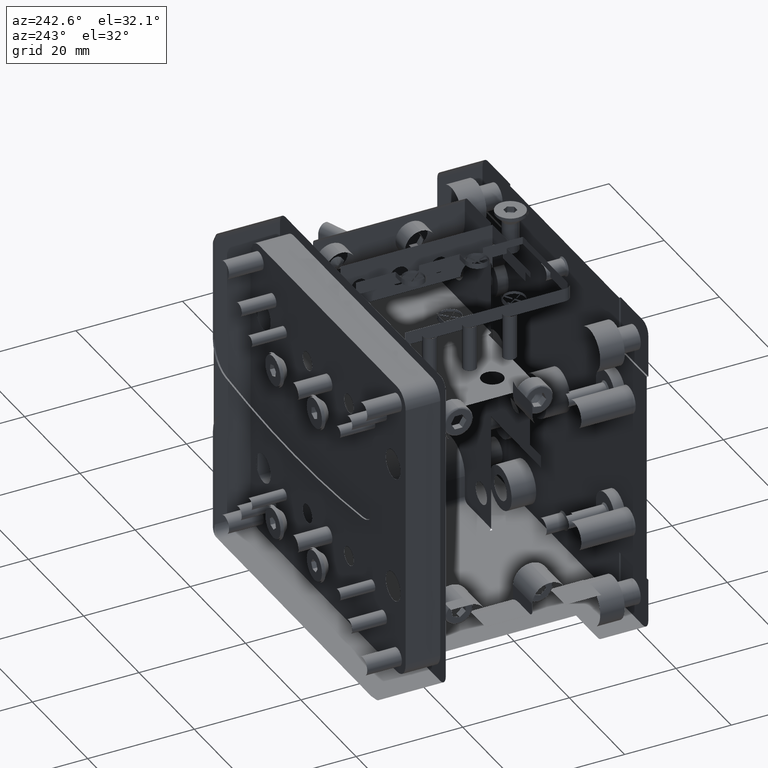
[diagram: clean part render]
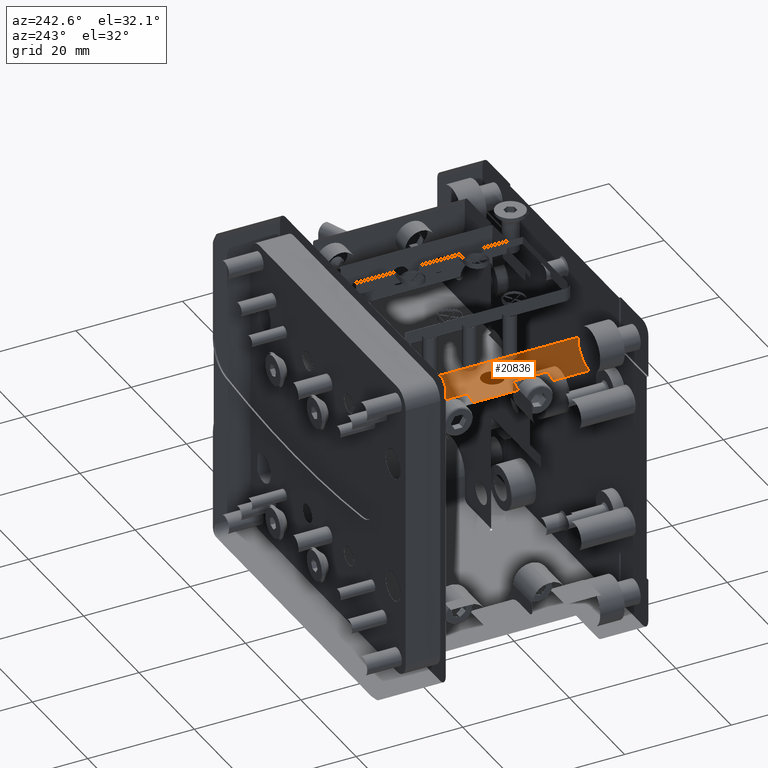
[diagram: same view with one face highlighted and labeled with its STEP entity id]
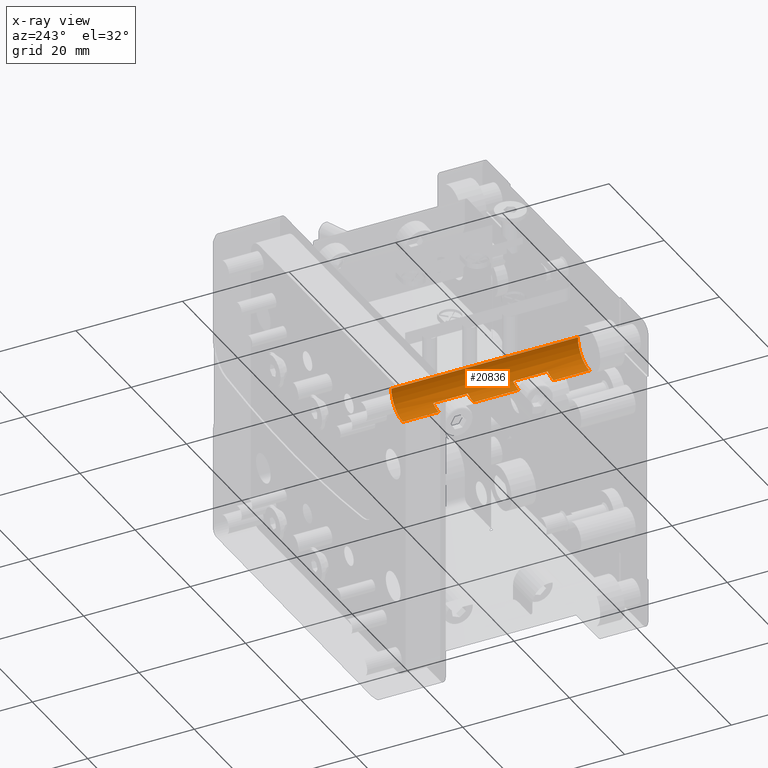
[diagram: x-ray of the same camera — body ghosted, the highlighted face saturated]
A machine part, auxiliary view. The second image highlights one B-rep face of the part: STEP entity #20836.
The next image is the same camera in x-ray: the body ghosted, the highlighted face saturated — about 0% of this face is hidden behind the body in this view.
In plain terms, the highlighted cylindrical surface (edge-blend (fillet) strip) has radius 4.2 mm, axis along (0, 1, 0).
Its self-contained STEP definition (entity closure, byte-faithful):
#621 = CIRCLE ( 'NONE', #13850, 4.200000000000001954 ) ;
#745 = CARTESIAN_POINT ( 'NONE',  ( -25.09999999999999787, 15.25000000000000000, 25.09999999999999787 ) ) ;
#1170 = CARTESIAN_POINT ( 'NONE',  ( -25.09999999999999787, 36.75000000000001421, 25.09999999999999787 ) ) ;
#1566 = EDGE_CURVE ( 'NONE', #25994, #18930, #11761, .T. ) ;
#1575 = VECTOR ( 'NONE', #7984, 1000.000000000000000 ) ;
#1709 = DIRECTION ( 'NONE',  ( 0.000000000000000000, 1.000000000000000000, 0.000000000000000000 ) ) ;
#2327 = ORIENTED_EDGE ( 'NONE', *, *, #3522, .T. ) ;
#2416 = VECTOR ( 'NONE', #28648, 1000.000000000000000 ) ;
#2910 = EDGE_CURVE ( 'NONE', #24552, #3151, #20544, .T. ) ;
#3048 = EDGE_CURVE ( 'NONE', #3490, #14588, #21312, .T. ) ;
#3151 = VERTEX_POINT ( 'NONE', #22946 ) ;
#3490 = VERTEX_POINT ( 'NONE', #6760 ) ;
#3522 = EDGE_CURVE ( 'NONE', #26199, #25994, #17389, .T. ) ;
#3776 = DIRECTION ( 'NONE',  ( 0.000000000000000000, 0.000000000000000000, 1.000000000000000000 ) ) ;
#4039 = ORIENTED_EDGE ( 'NONE', *, *, #16039, .F. ) ;
#5804 = CARTESIAN_POINT ( 'NONE',  ( -20.89999999999999503, 43.50000000000001421, 25.09999999999999787 ) ) ;
#6244 = CARTESIAN_POINT ( 'NONE',  ( -25.09999999999999787, 43.50000000000001421, 20.89999999999999503 ) ) ;
#6348 = AXIS2_PLACEMENT_3D ( 'NONE', #20880, #22667, #25347 ) ;
#6377 = ORIENTED_EDGE ( 'NONE', *, *, #9984, .T. ) ;
#6554 = CARTESIAN_POINT ( 'NONE',  ( -25.09999999999999787, 43.50000000000001421, 20.89999999999999503 ) ) ;
#6699 = CARTESIAN_POINT ( 'NONE',  ( -25.09999999999999787, 43.50000000000001421, 25.09999999999999787 ) ) ;
#6760 = CARTESIAN_POINT ( 'NONE',  ( -25.09999999999999787, 15.25000000000000000, 20.89999999999999503 ) ) ;
#6896 = AXIS2_PLACEMENT_3D ( 'NONE', #24074, #1709, #3776 ) ;
#7427 = ORIENTED_EDGE ( 'NONE', *, *, #3048, .T. ) ;
#7442 = CARTESIAN_POINT ( 'NONE',  ( -25.09999999999999787, 30.25000000000000355, 25.09999999999999787 ) ) ;
#7592 = DIRECTION ( 'NONE',  ( 0.000000000000000000, 1.000000000000000000, 0.000000000000000000 ) ) ;
#7924 = EDGE_CURVE ( 'NONE', #28062, #3151, #9946, .T. ) ;
#7984 = DIRECTION ( 'NONE',  ( 0.000000000000000000, 1.000000000000000000, 0.000000000000000000 ) ) ;
#8406 = CARTESIAN_POINT ( 'NONE',  ( -22.99999999999999289, 30.25000000000000355, 21.46269330410535403 ) ) ;
#8927 = FACE_OUTER_BOUND ( 'NONE', #16486, .T. ) ;
#9127 = VECTOR ( 'NONE', #7592, 1000.000000000000000 ) ;
#9126 = CARTESIAN_POINT ( 'NONE',  ( -25.09999999999999787, 21.75000000000000355, 25.09999999999999787 ) ) ;
#9141 = CARTESIAN_POINT ( 'NONE',  ( -25.09999999999999787, 21.75000000000000355, 20.89999999999999503 ) ) ;
#9694 = CARTESIAN_POINT ( 'NONE',  ( -22.99999999999999289, 21.75000000000000355, 21.46269330410535403 ) ) ;
#9794 = DIRECTION ( 'NONE',  ( -2.478176394252580549E-15, 0.000000000000000000, 1.000000000000000000 ) ) ;
#9946 = LINE ( 'NONE', #5804, #9127 ) ;
#9984 = EDGE_CURVE ( 'NONE', #28062, #17117, #22491, .T. ) ;
#10150 = ORIENTED_EDGE ( 'NONE', *, *, #20719, .T. ) ;
#10180 = EDGE_CURVE ( 'NONE', #23463, #24552, #13181, .T. ) ;
#10611 = DIRECTION ( 'NONE',  ( -0.000000000000000000, -1.000000000000000000, -0.000000000000000000 ) ) ;
#11286 = DIRECTION ( 'NONE',  ( 0.000000000000000000, 0.000000000000000000, 1.000000000000000000 ) ) ;
#11761 = CIRCLE ( 'NONE', #13173, 4.200000000000001954 ) ;
#11831 = CIRCLE ( 'NONE', #12772, 4.200000000000001954 ) ;
#12160 = VERTEX_POINT ( 'NONE', #9694 ) ;
#12772 = AXIS2_PLACEMENT_3D ( 'NONE', #1170, #19242, #19380 ) ;
#13173 = AXIS2_PLACEMENT_3D ( 'NONE', #7442, #14671, #9794 ) ;
#13181 = LINE ( 'NONE', #6244, #22860 ) ;
#13454 = CARTESIAN_POINT ( 'NONE',  ( -25.09999999999999787, 43.50000000000001421, 20.89999999999999503 ) ) ;
#13818 = AXIS2_PLACEMENT_3D ( 'NONE', #6699, #15745, #11286 ) ;
#13850 = AXIS2_PLACEMENT_3D ( 'NONE', #9126, #15930, #18308 ) ;
#13985 = ORIENTED_EDGE ( 'NONE', *, *, #27543, .T. ) ;
#14073 = CARTESIAN_POINT ( 'NONE',  ( -25.09999999999999787, 8.500000000000000000, 20.89999999999999503 ) ) ;
#14588 = VERTEX_POINT ( 'NONE', #19909 ) ;
#14671 = DIRECTION ( 'NONE',  ( -0.000000000000000000, -1.000000000000000000, -0.000000000000000000 ) ) ;
#14803 = CARTESIAN_POINT ( 'NONE',  ( -22.99999999999999289, 36.75000000000000711, 21.46269330410535403 ) ) ;
#15047 = ORIENTED_EDGE ( 'NONE', *, *, #7924, .F. ) ;
#15236 = CARTESIAN_POINT ( 'NONE',  ( -22.99999999999999289, 43.50000000000001421, 21.46269330410535403 ) ) ;
#15279 = DIRECTION ( 'NONE',  ( 0.000000000000000000, 1.000000000000000000, 0.000000000000000000 ) ) ;
#15308 = LINE ( 'NONE', #22110, #28937 ) ;
#15745 = DIRECTION ( 'NONE',  ( 0.000000000000000000, 1.000000000000000000, 0.000000000000000000 ) ) ;
#15930 = DIRECTION ( 'NONE',  ( 0.000000000000000000, 1.000000000000000000, 0.000000000000000000 ) ) ;
#16039 = EDGE_CURVE ( 'NONE', #3490, #17117, #28548, .T. ) ;
#16399 = EDGE_CURVE ( 'NONE', #18930, #16420, #26057, .T. ) ;
#16420 = VERTEX_POINT ( 'NONE', #14803 ) ;
#16486 = EDGE_LOOP ( 'NONE', ( #13985, #26738, #22403, #15047, #6377, #4039, #7427, #10150, #23522, #2327, #21266, #25853 ) ) ;
#17117 = VERTEX_POINT ( 'NONE', #14073 ) ;
#17389 = LINE ( 'NONE', #6554, #2416 ) ;
#17970 = CYLINDRICAL_SURFACE ( 'NONE', #13818, 4.200000000000001954 ) ;
#18308 = DIRECTION ( 'NONE',  ( 0.000000000000000000, 0.000000000000000000, 1.000000000000000000 ) ) ;
#18930 = VERTEX_POINT ( 'NONE', #8406 ) ;
#19242 = DIRECTION ( 'NONE',  ( 0.000000000000000000, 1.000000000000000000, 0.000000000000000000 ) ) ;
#19380 = DIRECTION ( 'NONE',  ( 0.000000000000000000, 0.000000000000000000, 1.000000000000000000 ) ) ;
#19700 = CARTESIAN_POINT ( 'NONE',  ( -25.09999999999999787, 36.75000000000001421, 20.89999999999999503 ) ) ;
#19909 = CARTESIAN_POINT ( 'NONE',  ( -22.99999999999999289, 15.25000000000000000, 21.46269330410535403 ) ) ;
#20544 = CIRCLE ( 'NONE', #6348, 4.200000000000001954 ) ;
#20719 = EDGE_CURVE ( 'NONE', #14588, #12160, #15308, .T. ) ;
#20836 = ADVANCED_FACE ( 'NONE', ( #8927 ), #17970, .T. ) ;
#20880 = CARTESIAN_POINT ( 'NONE',  ( -25.09999999999999787, 43.50000000000001421, 25.09999999999999787 ) ) ;
#21266 = ORIENTED_EDGE ( 'NONE', *, *, #1566, .T. ) ;
#21312 = CIRCLE ( 'NONE', #23203, 4.200000000000001954 ) ;
#22110 = CARTESIAN_POINT ( 'NONE',  ( -22.99999999999999289, 43.50000000000001421, 21.46269330410535403 ) ) ;
#22403 = ORIENTED_EDGE ( 'NONE', *, *, #2910, .T. ) ;
#22491 = CIRCLE ( 'NONE', #6896, 4.200000000000001954 ) ;
#22667 = DIRECTION ( 'NONE',  ( -0.000000000000000000, -1.000000000000000000, -0.000000000000000000 ) ) ;
#22700 = DIRECTION ( 'NONE',  ( 0.000000000000000000, 1.000000000000000000, 0.000000000000000000 ) ) ;
#22860 = VECTOR ( 'NONE', #15279, 1000.000000000000000 ) ;
#22946 = CARTESIAN_POINT ( 'NONE',  ( -20.89999999999999503, 43.50000000000001421, 25.09999999999999787 ) ) ;
#23203 = AXIS2_PLACEMENT_3D ( 'NONE', #745, #28290, #23689 ) ;
#23463 = VERTEX_POINT ( 'NONE', #19700 ) ;
#23522 = ORIENTED_EDGE ( 'NONE', *, *, #24027, .T. ) ;
#23689 = DIRECTION ( 'NONE',  ( -2.478176394252580549E-15, 0.000000000000000000, 1.000000000000000000 ) ) ;
#23965 = CARTESIAN_POINT ( 'NONE',  ( -25.09999999999999787, 30.25000000000000355, 20.89999999999999503 ) ) ;
#24027 = EDGE_CURVE ( 'NONE', #12160, #26199, #621, .T. ) ;
#24074 = CARTESIAN_POINT ( 'NONE',  ( -25.09999999999999787, 8.500000000000000000, 25.09999999999999787 ) ) ;
#24552 = VERTEX_POINT ( 'NONE', #13454 ) ;
#25347 = DIRECTION ( 'NONE',  ( 0.000000000000000000, 0.000000000000000000, 1.000000000000000000 ) ) ;
#25680 = VECTOR ( 'NONE', #10611, 1000.000000000000000 ) ;
#25853 = ORIENTED_EDGE ( 'NONE', *, *, #16399, .T. ) ;
#25994 = VERTEX_POINT ( 'NONE', #23965 ) ;
#26057 = LINE ( 'NONE', #15236, #1575 ) ;
#26199 = VERTEX_POINT ( 'NONE', #9141 ) ;
#26323 = CARTESIAN_POINT ( 'NONE',  ( -25.09999999999999787, 43.50000000000001421, 20.89999999999999503 ) ) ;
#26738 = ORIENTED_EDGE ( 'NONE', *, *, #10180, .T. ) ;
#27543 = EDGE_CURVE ( 'NONE', #16420, #23463, #11831, .T. ) ;
#28062 = VERTEX_POINT ( 'NONE', #28956 ) ;
#28290 = DIRECTION ( 'NONE',  ( -0.000000000000000000, -1.000000000000000000, -0.000000000000000000 ) ) ;
#28548 = LINE ( 'NONE', #26323, #25680 ) ;
#28648 = DIRECTION ( 'NONE',  ( 0.000000000000000000, 1.000000000000000000, 0.000000000000000000 ) ) ;
#28937 = VECTOR ( 'NONE', #22700, 1000.000000000000000 ) ;
#28956 = CARTESIAN_POINT ( 'NONE',  ( -20.89999999999999503, 8.500000000000000000, 25.09999999999999787 ) ) ;